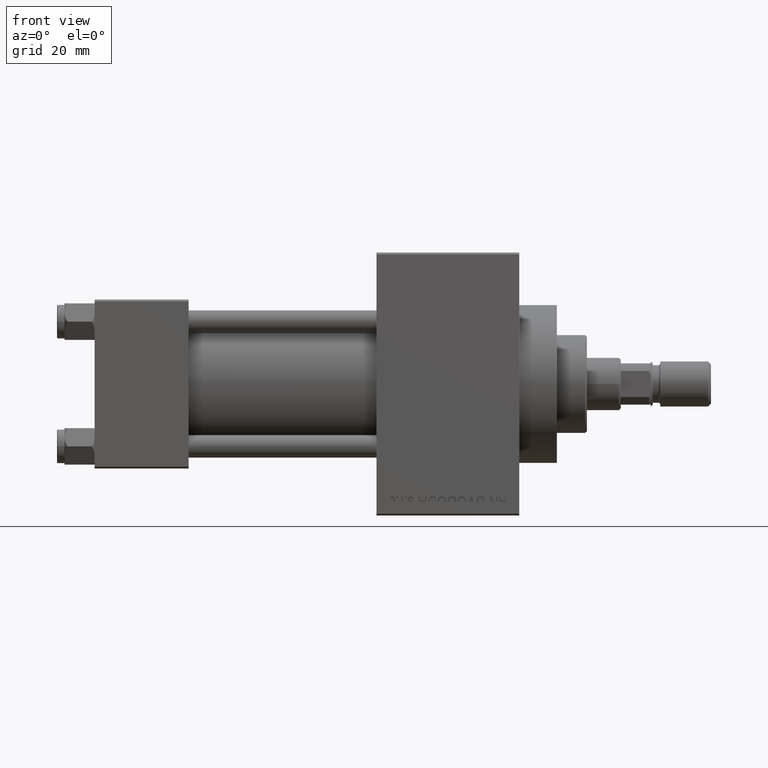
[diagram: clean part render]
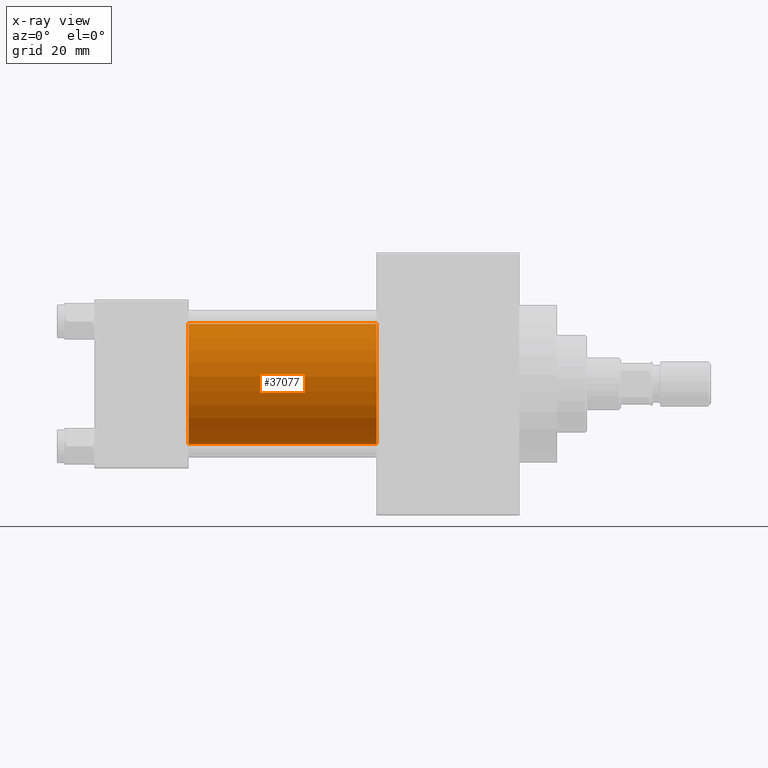
[diagram: x-ray — body ghosted, one internal face saturated and labeled with its STEP entity id]
A machine part, front view, then the same camera in x-ray: the body is ghosted and one INTERNAL B-rep face — a face not visible from any outside direction — is saturated and labeled: STEP entity #37077.
In plain terms, the highlighted cylindrical surface (partial cylindrical patch) has radius 16 mm, axis along (-1, -0, -0).
Its self-contained STEP definition (entity closure, byte-faithful):
#426 = VERTEX_POINT ( 'NONE', #5632 ) ;
#1172 = CARTESIAN_POINT ( 'NONE',  ( 75.00000000000001421, -6.426503353294456087E-16, -16.00000000000000000 ) ) ;
#2074 = DIRECTION ( 'NONE',  ( -1.000000000000000000, -0.000000000000000000, -0.000000000000000000 ) ) ;
#3540 = DIRECTION ( 'NONE',  ( -1.000000000000000000, -0.000000000000000000, -0.000000000000000000 ) ) ;
#5632 = CARTESIAN_POINT ( 'NONE',  ( 25.00000000000000000, -6.426503353294456087E-16, -16.00000000000000000 ) ) ;
#5841 = EDGE_CURVE ( 'NONE', #30248, #28565, #29267, .T. ) ;
#7553 = CARTESIAN_POINT ( 'NONE',  ( 75.00000000000001421, -2.602085213965210642E-15, 0.000000000000000000 ) ) ;
#8536 = ORIENTED_EDGE ( 'NONE', *, *, #5841, .F. ) ;
#10248 = CARTESIAN_POINT ( 'NONE',  ( 75.00000000000001421, -2.602085213965210642E-15, 16.00000000000000000 ) ) ;
#11826 = VERTEX_POINT ( 'NONE', #1172 ) ;
#12252 = EDGE_CURVE ( 'NONE', #30248, #11826, #37955, .T. ) ;
#14847 = CYLINDRICAL_SURFACE ( 'NONE', #48665, 16.00000000000000000 ) ;
#14906 = ORIENTED_EDGE ( 'NONE', *, *, #16905, .F. ) ;
#15412 = ORIENTED_EDGE ( 'NONE', *, *, #25879, .T. ) ;
#16672 = DIRECTION ( 'NONE',  ( 0.000000000000000000, 0.000000000000000000, -1.000000000000000000 ) ) ;
#16905 = EDGE_CURVE ( 'NONE', #28565, #426, #34088, .T. ) ;
#19571 = AXIS2_PLACEMENT_3D ( 'NONE', #28893, #47726, #16672 ) ;
#19637 = CARTESIAN_POINT ( 'NONE',  ( 25.00000000000000000, -2.602085213965210642E-15, 0.000000000000000000 ) ) ;
#23076 = FACE_OUTER_BOUND ( 'NONE', #45561, .T. ) ;
#25510 = DIRECTION ( 'NONE',  ( -1.000000000000000000, -0.000000000000000000, -0.000000000000000000 ) ) ;
#25879 = EDGE_CURVE ( 'NONE', #11826, #426, #47215, .T. ) ;
#27304 = CARTESIAN_POINT ( 'NONE',  ( 75.00000000000001421, -2.602085213965210642E-15, 16.00000000000000000 ) ) ;
#28565 = VERTEX_POINT ( 'NONE', #43513 ) ;
#28893 = CARTESIAN_POINT ( 'NONE',  ( 75.00000000000001421, -2.602085213965210642E-15, 0.000000000000000000 ) ) ;
#29267 = LINE ( 'NONE', #10248, #30643 ) ;
#30248 = VERTEX_POINT ( 'NONE', #27304 ) ;
#30643 = VECTOR ( 'NONE', #25510, 1000.000000000000000 ) ;
#34088 = CIRCLE ( 'NONE', #49339, 16.00000000000000000 ) ;
#34915 = DIRECTION ( 'NONE',  ( 1.000000000000000000, 0.000000000000000000, 0.000000000000000000 ) ) ;
#37077 = ADVANCED_FACE ( 'NONE', ( #23076 ), #14847, .F. ) ;
#37955 = CIRCLE ( 'NONE', #19571, 16.00000000000000000 ) ;
#38125 = DIRECTION ( 'NONE',  ( 0.000000000000000000, 0.000000000000000000, 1.000000000000000000 ) ) ;
#38926 = DIRECTION ( 'NONE',  ( 0.000000000000000000, 0.000000000000000000, -1.000000000000000000 ) ) ;
#41656 = ORIENTED_EDGE ( 'NONE', *, *, #12252, .T. ) ;
#43513 = CARTESIAN_POINT ( 'NONE',  ( 25.00000000000000000, -2.602085213965210642E-15, 16.00000000000000000 ) ) ;
#43931 = CARTESIAN_POINT ( 'NONE',  ( 75.00000000000001421, -6.426503353294456087E-16, -16.00000000000000000 ) ) ;
#45561 = EDGE_LOOP ( 'NONE', ( #41656, #15412, #14906, #8536 ) ) ;
#47215 = LINE ( 'NONE', #43931, #47592 ) ;
#47592 = VECTOR ( 'NONE', #2074, 1000.000000000000000 ) ;
#47726 = DIRECTION ( 'NONE',  ( 1.000000000000000000, 0.000000000000000000, 0.000000000000000000 ) ) ;
#48665 = AXIS2_PLACEMENT_3D ( 'NONE', #7553, #3540, #38125 ) ;
#49339 = AXIS2_PLACEMENT_3D ( 'NONE', #19637, #34915, #38926 ) ;